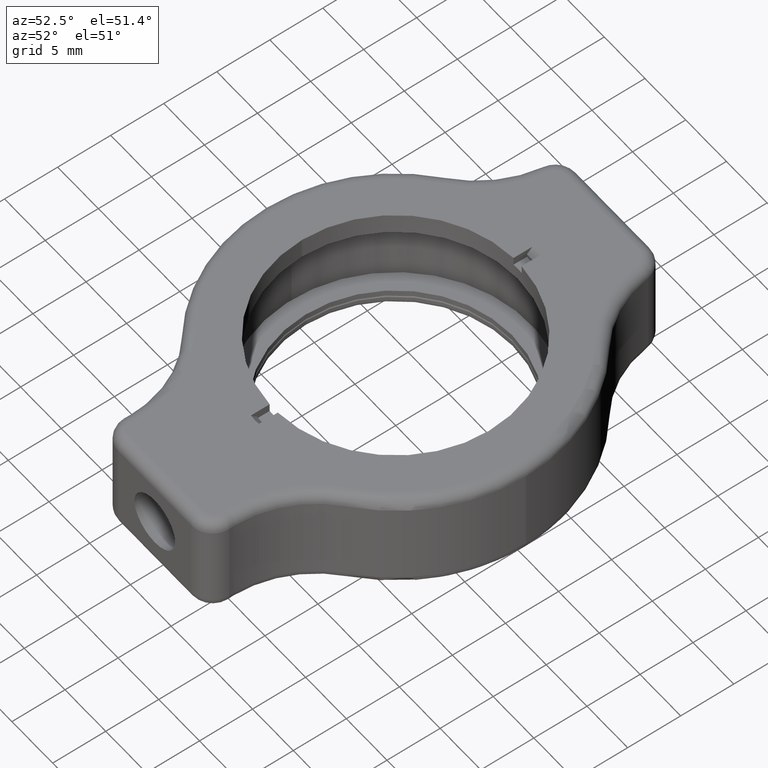
[diagram: clean part render]
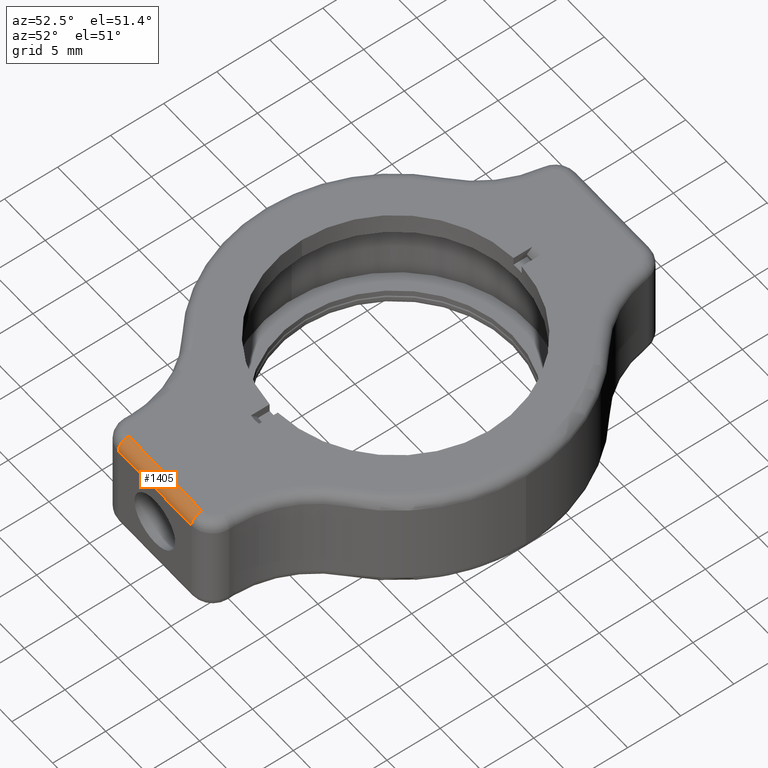
[diagram: same view with one face highlighted and labeled with its STEP entity id]
A machine part, auxiliary view. The second image highlights one B-rep face of the part: STEP entity #1405.
In plain terms, the highlighted cylindrical surface (edge-blend (fillet) strip) has radius 1 mm, axis along (-1, -0, 0).
Its self-contained STEP definition (entity closure, byte-faithful):
#49 = AXIS2_PLACEMENT_3D ( 'NONE', #1767, #964, #2609 ) ;
#87 = CARTESIAN_POINT ( 'NONE',  ( -4.502471032530114500, -22.69999999999999200, -0.9999999999999965600 ) ) ;
#100 = CARTESIAN_POINT ( 'NONE',  ( 5.781015913443414300E-016, -21.69999999999998900, -0.9999999999999967800 ) ) ;
#189 = VERTEX_POINT ( 'NONE', #2196 ) ;
#309 = VECTOR ( 'NONE', #608, 1000.000000000000000 ) ;
#433 = ORIENTED_EDGE ( 'NONE', *, *, #2260, .F. ) ;
#448 = AXIS2_PLACEMENT_3D ( 'NONE', #100, #686, #1530 ) ;
#478 = EDGE_CURVE ( 'NONE', #189, #860, #1291, .T. ) ;
#608 = DIRECTION ( 'NONE',  ( 1.000000000000000000, 2.775557561562889500E-017, -2.419439951480629400E-017 ) ) ;
#686 = DIRECTION ( 'NONE',  ( -1.000000000000000000, -2.775557561562889500E-017, 2.419439951480629400E-017 ) ) ;
#694 = CARTESIAN_POINT ( 'NONE',  ( 6.058571669599703400E-016, -22.69999999999999200, -0.9999999999999967800 ) ) ;
#776 = CARTESIAN_POINT ( 'NONE',  ( -4.502471032530114500, -21.69999999999999600, -0.9999999999999974500 ) ) ;
#789 = EDGE_LOOP ( 'NONE', ( #2442, #1241, #433, #2064 ) ) ;
#796 = CARTESIAN_POINT ( 'NONE',  ( 6.022959908591476000E-016, -21.69999999999998900, 1.130673327755801900E-029 ) ) ;
#860 = VERTEX_POINT ( 'NONE', #87 ) ;
#877 = LINE ( 'NONE', #796, #309 ) ;
#964 = DIRECTION ( 'NONE',  ( 1.000000000000000000, 2.775557561562889500E-017, -2.419439951480629400E-017 ) ) ;
#970 = CIRCLE ( 'NONE', #49, 0.9999999999999986700 ) ;
#1042 = VERTEX_POINT ( 'NONE', #2197 ) ;
#1088 = EDGE_CURVE ( 'NONE', #1696, #1042, #877, .T. ) ;
#1122 = CYLINDRICAL_SURFACE ( 'NONE', #448, 0.9999999999999986700 ) ;
#1241 = ORIENTED_EDGE ( 'NONE', *, *, #478, .F. ) ;
#1291 = LINE ( 'NONE', #694, #1380 ) ;
#1380 = VECTOR ( 'NONE', #2313, 1000.000000000000000 ) ;
#1405 = ADVANCED_FACE ( 'NONE', ( #1526 ), #1122, .T. ) ;
#1410 = AXIS2_PLACEMENT_3D ( 'NONE', #776, #1546, #2198 ) ;
#1526 = FACE_OUTER_BOUND ( 'NONE', #789, .T. ) ;
#1530 = DIRECTION ( 'NONE',  ( 2.419439951480636800E-017, 0.0000000000000000000, 1.000000000000000000 ) ) ;
#1546 = DIRECTION ( 'NONE',  ( 1.000000000000000000, 2.775557561562889500E-017, -2.419439951480629400E-017 ) ) ;
#1686 = CIRCLE ( 'NONE', #1410, 0.9999999999999986700 ) ;
#1696 = VERTEX_POINT ( 'NONE', #2062 ) ;
#1767 = CARTESIAN_POINT ( 'NONE',  ( 4.502471032530116300, -21.69999999999998900, -0.9999999999999978900 ) ) ;
#1984 = EDGE_CURVE ( 'NONE', #1696, #860, #1686, .T. ) ;
#2062 = CARTESIAN_POINT ( 'NONE',  ( -4.502471032530114500, -21.69999999999998900, 1.089345829648873900E-016 ) ) ;
#2064 = ORIENTED_EDGE ( 'NONE', *, *, #1088, .F. ) ;
#2196 = CARTESIAN_POINT ( 'NONE',  ( 4.502471032530116300, -22.69999999999999200, -0.9999999999999970000 ) ) ;
#2197 = CARTESIAN_POINT ( 'NONE',  ( 4.502471032530116300, -21.69999999999999600, -1.089345829648646700E-016 ) ) ;
#2198 = DIRECTION ( 'NONE',  ( 0.0000000000000000000, 0.0000000000000000000, -1.000000000000000000 ) ) ;
#2260 = EDGE_CURVE ( 'NONE', #1042, #189, #970, .T. ) ;
#2313 = DIRECTION ( 'NONE',  ( -1.000000000000000000, -2.775557561562889500E-017, 2.419439951480629400E-017 ) ) ;
#2442 = ORIENTED_EDGE ( 'NONE', *, *, #1984, .T. ) ;
#2609 = DIRECTION ( 'NONE',  ( 0.0000000000000000000, 0.0000000000000000000, -1.000000000000000000 ) ) ;